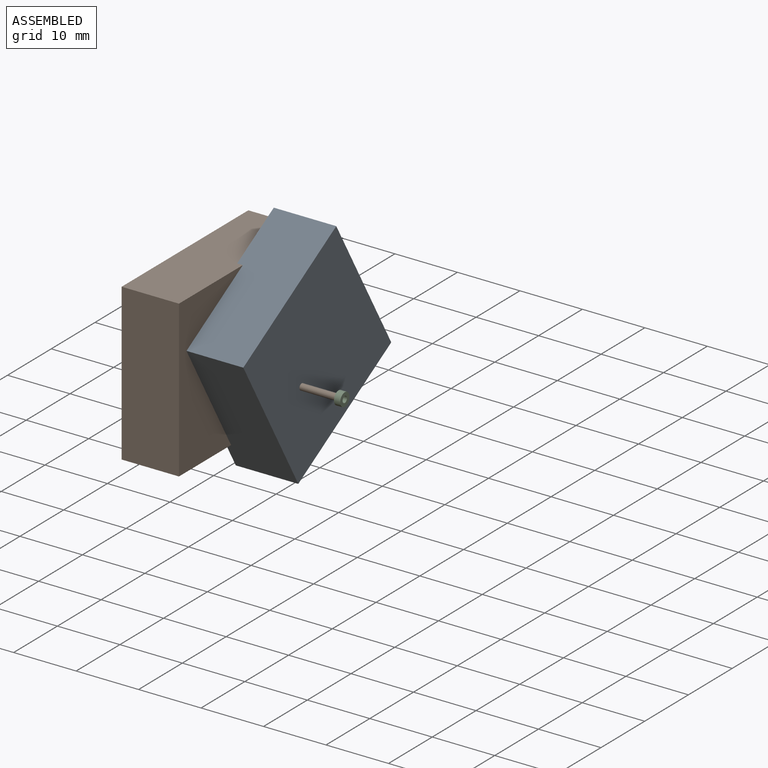
[diagram: assembled view]
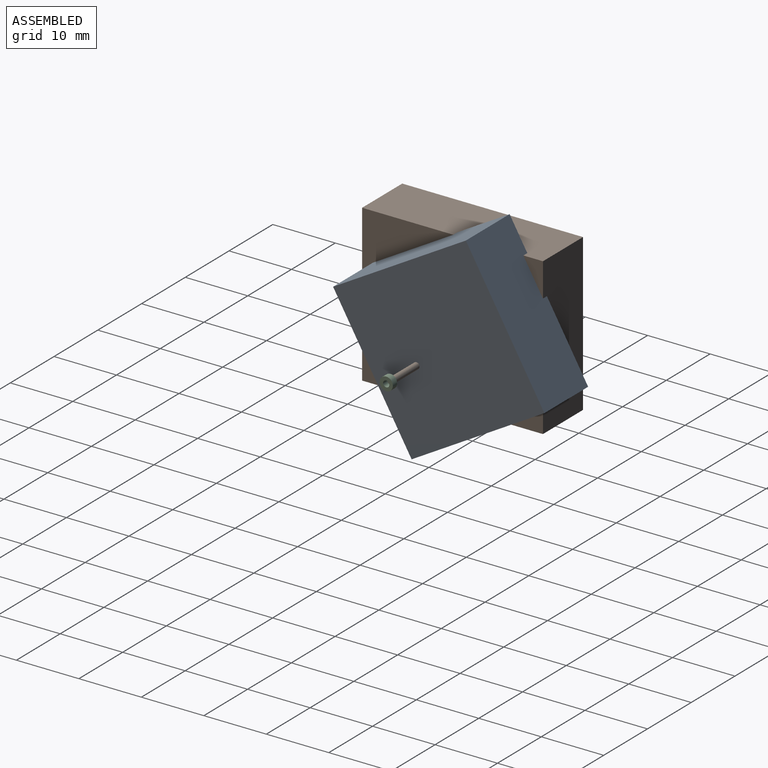
[diagram: assembled view, second angle]
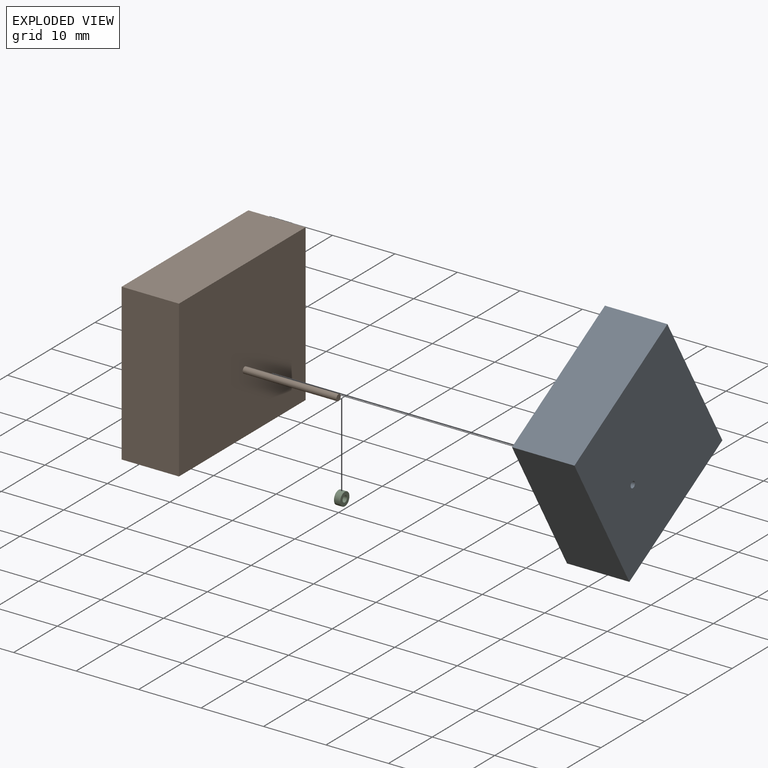
[diagram: exploded view]
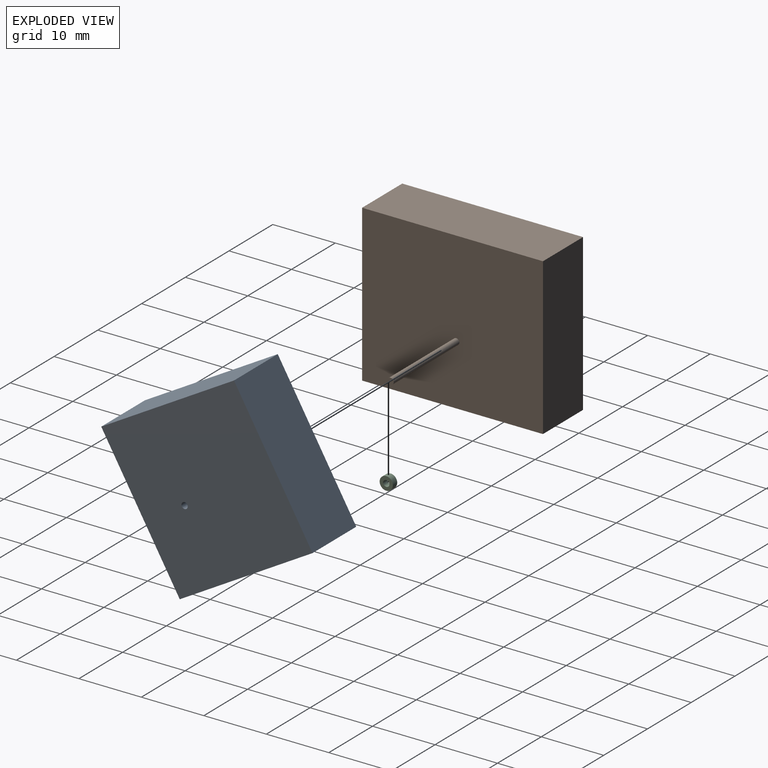
[diagram: exploded view, second angle]
ASSEMBLY  parts=3 mates=2
PART A: 7 faces, bbox 10x24.6x25 mm
  f0: plane 25x24.58mm, normal (-1,0,0), area 613.8mm2, adj f1,f3,f4,f5,f6
  f1: plane 25x10mm, normal (0,-1,0), area 250mm2, adj f0,f2,f4,f5
  f2: plane 25x24.58mm, normal (1,0,0), area 613.8mm2, adj f1,f3,f4,f5,f6
  f3: plane 25x10mm, normal (0,1,0), area 250mm2, adj f0,f2,f4,f5
  f4: plane 24.58x10mm, normal (0,0,1), area 245.8mm2, adj f0,f1,f2,f3
  f5: plane 24.58x10mm, normal (0,0,-1), area 245.8mm2, adj f0,f1,f2,f3
  f6: cylinder r=0.5mm len=10mm, axis (1,0,0), area 31.4mm2, adj f0,f2
PART B: 8 faces, bbox 24.2x28.9x25 mm
  f0: plane 28.94x25mm, normal (-1,0,0), area 723.6mm2, adj f1,f3,f4,f5
  f1: plane 25x9.17mm, normal (0,-1,0), area 229.1mm2, adj f0,f2,f4,f5
  f2: plane 28.94x25mm, normal (1,0,0), area 722.8mm2, adj f1,f3,f4,f5,f6
  f3: plane 25x9.17mm, normal (0,1,0), area 229.1mm2, adj f0,f2,f4,f5
  f4: plane 28.94x9.17mm, normal (0,0,1), area 265.3mm2, adj f0,f1,f2,f3
  f5: plane 28.94x9.17mm, normal (0,0,-1), area 265.3mm2, adj f0,f1,f2,f3
  f6: cylinder r=0.5mm len=15mm, axis (-1,0,0), area 47.1mm2, adj f2,f7
  f7: plane 1x1mm, normal (1,0,0), area 0.8mm2, adj f6
PART C: 4 faces, bbox 1x2.1x2.1 mm
  f0: cylinder r=0.5mm len=1mm, axis (-1,0,0), area 3.1mm2, adj f2,f3
  f1: cylinder r=1.06mm len=2.11mm, axis (-1,0,0), area 6.6mm2, adj f2,f3
  f2: plane 2.11x2.11mm, normal (1,0,0), area 2.7mm2, adj f0,f1
  f3: plane 2.11x2.11mm, normal (-1,0,0), area 2.7mm2, adj f0,f1
PLACE A rot(axis=(-1,0,0),149.8deg) t=(45.87,8.5,29.87)mm
PLACE B t=(21.35,-14.47,0)mm
PLACE C t=(21.35,-14.47,0)mm
MATE cylindrical B.f6 <-> A.f6  axis (-1,0,0) through (12.08,0.59,9.66)mm
MATE fastened C.f0 <-> B.f6  axis (-1,0,0) through (19.58,0.59,9.66)mm
